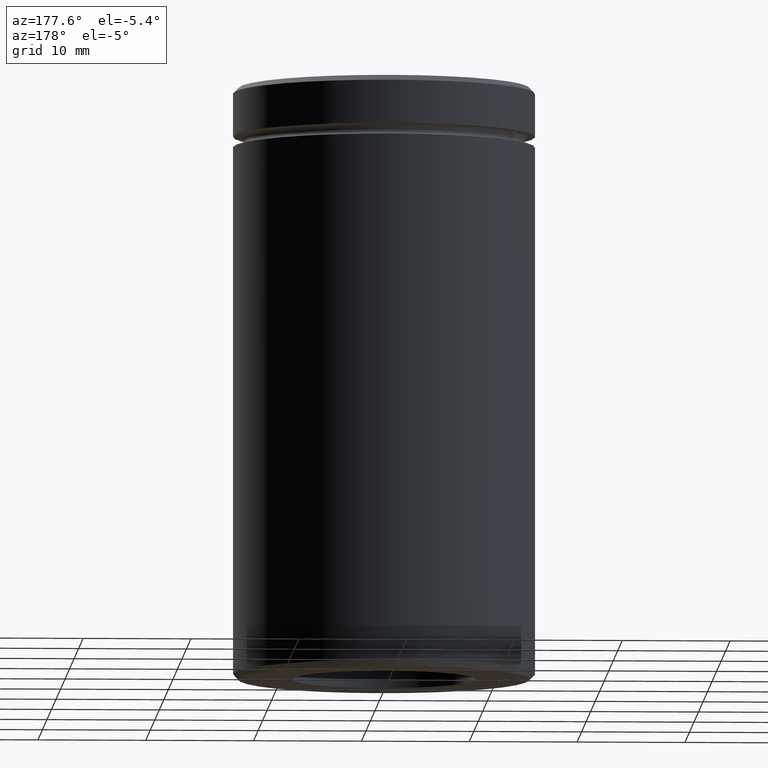
[diagram: clean part render]
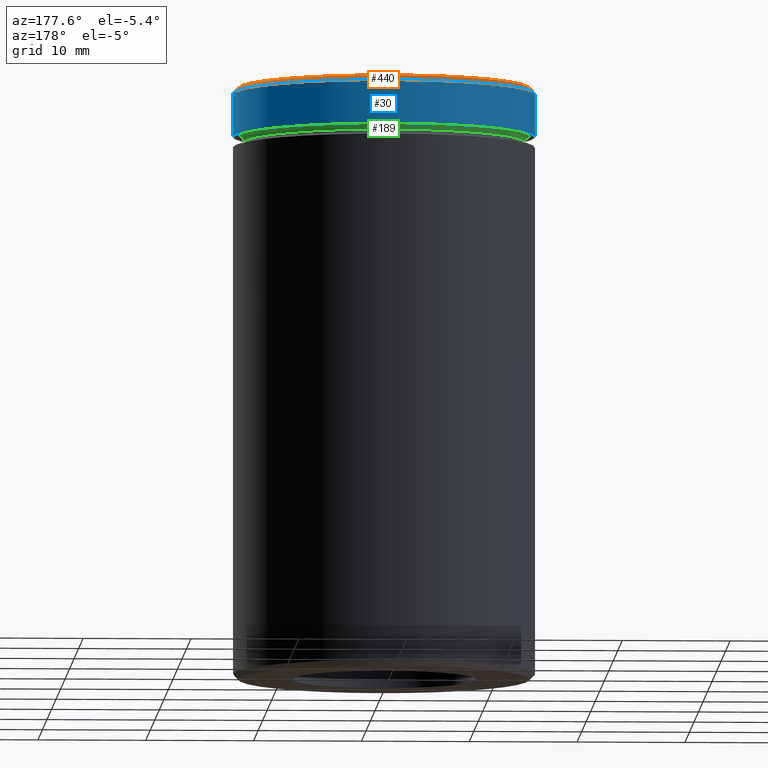
[diagram: same view with three faces highlighted in distinct colors, each labeled with its STEP entity id]
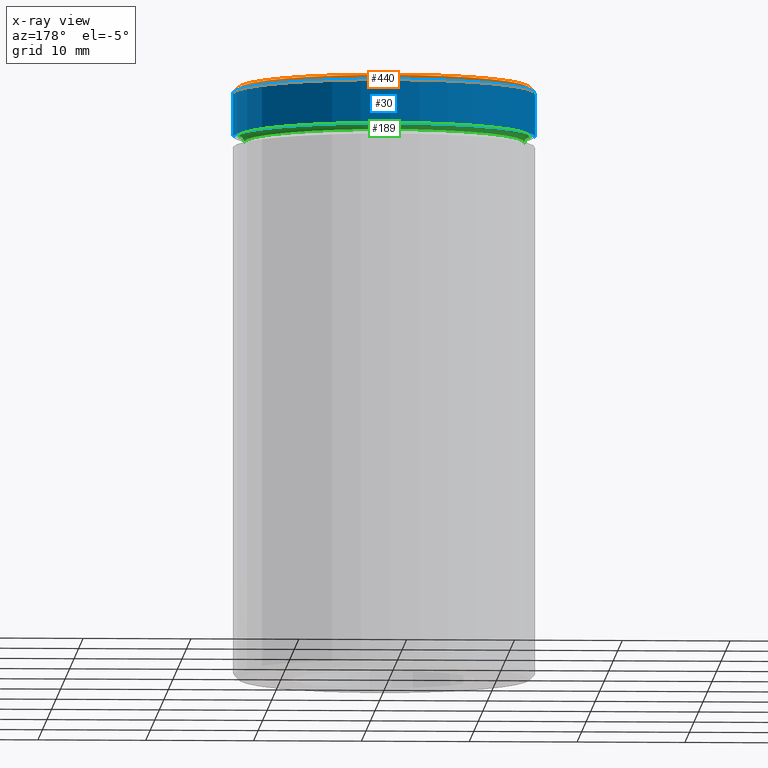
[diagram: x-ray of the same camera — body ghosted, the three highlighted faces saturated]
A machine part, auxiliary view with three faces highlighted in distinct colors.
The next image is the same camera in x-ray (body ghosted, the three faces saturated) — at least one of them is partly hidden behind the body in this view.
Their STEP definitions:

[orange] entity #440 — the highlighted conical surface has half-angle 45 deg.
#19 = EDGE_CURVE ( 'NONE', #69, #490, #403, .T. ) ;
#31 = FACE_OUTER_BOUND ( 'NONE', #479, .T. ) ;
#59 = AXIS2_PLACEMENT_3D ( 'NONE', #241, #411, #111 ) ;
#69 = VERTEX_POINT ( 'NONE', #513 ) ;
#104 = LINE ( 'NONE', #324, #536 ) ;
#108 = CONICAL_SURFACE ( 'NONE', #379, 13.50000000000001954, 0.7853981633974482790 ) ;
#111 = DIRECTION ( 'NONE',  ( 1.000000000000000000, 0.000000000000000000, 0.000000000000000000 ) ) ;
#117 = EDGE_CURVE ( 'NONE', #354, #426, #350, .T. ) ;
#121 = CARTESIAN_POINT ( 'NONE',  ( 0.000000000000000000, 0.000000000000000000, -0.4999999999999813483 ) ) ;
#140 = ORIENTED_EDGE ( 'NONE', *, *, #19, .F. ) ;
#155 = EDGE_CURVE ( 'NONE', #490, #354, #442, .T. ) ;
#216 = CARTESIAN_POINT ( 'NONE',  ( 0.000000000000000000, 0.000000000000000000, 0.000000000000000000 ) ) ;
#240 = VECTOR ( 'NONE', #454, 1000.000000000000114 ) ;
#241 = CARTESIAN_POINT ( 'NONE',  ( 0.000000000000000000, 0.000000000000000000, 0.000000000000000000 ) ) ;
#298 = ORIENTED_EDGE ( 'NONE', *, *, #155, .F. ) ;
#324 = CARTESIAN_POINT ( 'NONE',  ( 13.50000000000001954, 1.653273178848929233E-15, 0.000000000000000000 ) ) ;
#325 = CARTESIAN_POINT ( 'NONE',  ( -14.00000000000000000, 1.714505518806294638E-15, -0.4999999999999813483 ) ) ;
#350 = CIRCLE ( 'NONE', #437, 14.00000000000000000 ) ;
#352 = ORIENTED_EDGE ( 'NONE', *, *, #117, .F. ) ;
#354 = VERTEX_POINT ( 'NONE', #325 ) ;
#370 = CARTESIAN_POINT ( 'NONE',  ( -13.50000000000001954, 0.000000000000000000, 0.000000000000000000 ) ) ;
#379 = AXIS2_PLACEMENT_3D ( 'NONE', #216, #556, #467 ) ;
#403 = CIRCLE ( 'NONE', #59, 13.50000000000001954 ) ;
#411 = DIRECTION ( 'NONE',  ( -0.000000000000000000, -0.000000000000000000, 1.000000000000000000 ) ) ;
#420 = CARTESIAN_POINT ( 'NONE',  ( 14.00000000000000000, 0.000000000000000000, -0.4999999999999813483 ) ) ;
#426 = VERTEX_POINT ( 'NONE', #420 ) ;
#437 = AXIS2_PLACEMENT_3D ( 'NONE', #121, #486, #567 ) ;
#440 = ADVANCED_FACE ( 'NONE', ( #31 ), #108, .T. ) ;
#442 = LINE ( 'NONE', #370, #240 ) ;
#454 = DIRECTION ( 'NONE',  ( -0.7071067811865474617, 0.000000000000000000, -0.7071067811865474617 ) ) ;
#467 = DIRECTION ( 'NONE',  ( -1.000000000000000000, 0.000000000000000000, 0.000000000000000000 ) ) ;
#479 = EDGE_LOOP ( 'NONE', ( #140, #494, #352, #298 ) ) ;
#486 = DIRECTION ( 'NONE',  ( 0.000000000000000000, 0.000000000000000000, -1.000000000000000000 ) ) ;
#490 = VERTEX_POINT ( 'NONE', #508 ) ;
#494 = ORIENTED_EDGE ( 'NONE', *, *, #552, .T. ) ;
#496 = DIRECTION ( 'NONE',  ( 0.7071067811865474617, 8.659560562354932858E-17, -0.7071067811865474617 ) ) ;
#508 = CARTESIAN_POINT ( 'NONE',  ( -13.50000000000001954, 0.000000000000000000, 0.000000000000000000 ) ) ;
#513 = CARTESIAN_POINT ( 'NONE',  ( 13.50000000000001954, 1.683889348827612034E-15, 0.000000000000000000 ) ) ;
#536 = VECTOR ( 'NONE', #496, 1000.000000000000114 ) ;
#552 = EDGE_CURVE ( 'NONE', #69, #426, #104, .T. ) ;
#556 = DIRECTION ( 'NONE',  ( 0.000000000000000000, 0.000000000000000000, -1.000000000000000000 ) ) ;
#567 = DIRECTION ( 'NONE',  ( 1.000000000000000000, 0.000000000000000000, 0.000000000000000000 ) ) ;

[blue] entity #30 — the highlighted cylindrical surface (partial cylindrical patch) has radius 14 mm, axis along (-0, -0, 1).
#18 = CARTESIAN_POINT ( 'NONE',  ( -14.00000000000000000, 1.714505518806294638E-15, -4.500000000000000888 ) ) ;
#30 = ADVANCED_FACE ( 'NONE', ( #64 ), #197, .T. ) ;
#32 = CARTESIAN_POINT ( 'NONE',  ( 14.00000000000000000, 0.000000000000000000, 0.000000000000000000 ) ) ;
#64 = FACE_OUTER_BOUND ( 'NONE', #524, .T. ) ;
#95 = ORIENTED_EDGE ( 'NONE', *, *, #117, .T. ) ;
#117 = EDGE_CURVE ( 'NONE', #354, #426, #350, .T. ) ;
#121 = CARTESIAN_POINT ( 'NONE',  ( 0.000000000000000000, 0.000000000000000000, -0.4999999999999813483 ) ) ;
#123 = DIRECTION ( 'NONE',  ( -0.000000000000000000, -0.000000000000000000, 1.000000000000000000 ) ) ;
#143 = DIRECTION ( 'NONE',  ( 1.000000000000000000, 0.000000000000000000, 0.000000000000000000 ) ) ;
#154 = CARTESIAN_POINT ( 'NONE',  ( 0.000000000000000000, 0.000000000000000000, 0.000000000000000000 ) ) ;
#197 = CYLINDRICAL_SURFACE ( 'NONE', #258, 14.00000000000000000 ) ;
#213 = EDGE_CURVE ( 'NONE', #495, #426, #338, .T. ) ;
#218 = VERTEX_POINT ( 'NONE', #18 ) ;
#227 = VECTOR ( 'NONE', #123, 1000.000000000000000 ) ;
#232 = DIRECTION ( 'NONE',  ( -0.000000000000000000, -0.000000000000000000, 1.000000000000000000 ) ) ;
#234 = DIRECTION ( 'NONE',  ( -0.000000000000000000, -0.000000000000000000, 1.000000000000000000 ) ) ;
#235 = CARTESIAN_POINT ( 'NONE',  ( -14.00000000000000000, 1.714505518806294638E-15, 0.000000000000000000 ) ) ;
#236 = VECTOR ( 'NONE', #287, 1000.000000000000000 ) ;
#250 = LINE ( 'NONE', #235, #236 ) ;
#258 = AXIS2_PLACEMENT_3D ( 'NONE', #154, #232, #371 ) ;
#263 = ORIENTED_EDGE ( 'NONE', *, *, #561, .T. ) ;
#283 = CARTESIAN_POINT ( 'NONE',  ( 0.000000000000000000, 0.000000000000000000, -4.500000000000000888 ) ) ;
#287 = DIRECTION ( 'NONE',  ( -0.000000000000000000, -0.000000000000000000, 1.000000000000000000 ) ) ;
#321 = AXIS2_PLACEMENT_3D ( 'NONE', #283, #234, #143 ) ;
#325 = CARTESIAN_POINT ( 'NONE',  ( -14.00000000000000000, 1.714505518806294638E-15, -0.4999999999999813483 ) ) ;
#336 = ORIENTED_EDGE ( 'NONE', *, *, #213, .F. ) ;
#338 = LINE ( 'NONE', #32, #227 ) ;
#350 = CIRCLE ( 'NONE', #437, 14.00000000000000000 ) ;
#354 = VERTEX_POINT ( 'NONE', #325 ) ;
#371 = DIRECTION ( 'NONE',  ( 1.000000000000000000, 0.000000000000000000, 0.000000000000000000 ) ) ;
#413 = EDGE_CURVE ( 'NONE', #218, #354, #250, .T. ) ;
#420 = CARTESIAN_POINT ( 'NONE',  ( 14.00000000000000000, 0.000000000000000000, -0.4999999999999813483 ) ) ;
#426 = VERTEX_POINT ( 'NONE', #420 ) ;
#437 = AXIS2_PLACEMENT_3D ( 'NONE', #121, #486, #567 ) ;
#462 = ORIENTED_EDGE ( 'NONE', *, *, #413, .T. ) ;
#468 = CARTESIAN_POINT ( 'NONE',  ( 14.00000000000000000, 0.000000000000000000, -4.500000000000000888 ) ) ;
#486 = DIRECTION ( 'NONE',  ( 0.000000000000000000, 0.000000000000000000, -1.000000000000000000 ) ) ;
#495 = VERTEX_POINT ( 'NONE', #468 ) ;
#524 = EDGE_LOOP ( 'NONE', ( #263, #462, #95, #336 ) ) ;
#553 = CIRCLE ( 'NONE', #321, 14.00000000000000000 ) ;
#561 = EDGE_CURVE ( 'NONE', #495, #218, #553, .T. ) ;
#567 = DIRECTION ( 'NONE',  ( 1.000000000000000000, 0.000000000000000000, 0.000000000000000000 ) ) ;

[green] entity #189 — the highlighted toroidal blend (fillet) surface has major radius 13.5 mm and minor (blend) radius 0.5 mm.
#6 = DIRECTION ( 'NONE',  ( -1.224646799147353207E-16, 1.000000000000000000, 0.000000000000000000 ) ) ;
#22 = VERTEX_POINT ( 'NONE', #279 ) ;
#34 = FACE_OUTER_BOUND ( 'NONE', #382, .T. ) ;
#37 = EDGE_CURVE ( 'NONE', #285, #22, #277, .T. ) ;
#39 = DIRECTION ( 'NONE',  ( -1.000000000000000000, 0.000000000000000000, 0.000000000000000000 ) ) ;
#42 = VERTEX_POINT ( 'NONE', #126 ) ;
#50 = VERTEX_POINT ( 'NONE', #385 ) ;
#107 = ORIENTED_EDGE ( 'NONE', *, *, #229, .F. ) ;
#126 = CARTESIAN_POINT ( 'NONE',  ( -13.00000000000000178, 1.622657008870243277E-15, -4.999999999999999112 ) ) ;
#127 = DIRECTION ( 'NONE',  ( 1.000000000000000000, 0.000000000000000000, 0.000000000000000000 ) ) ;
#130 = DIRECTION ( 'NONE',  ( -0.000000000000000000, -1.000000000000000000, -0.000000000000000000 ) ) ;
#131 = CARTESIAN_POINT ( 'NONE',  ( 0.000000000000000000, 0.000000000000000000, -5.000000000000000888 ) ) ;
#133 = CARTESIAN_POINT ( 'NONE',  ( 0.000000000000000000, 0.000000000000000000, -4.999999999999999112 ) ) ;
#144 = CIRCLE ( 'NONE', #443, 0.5000000000000004441 ) ;
#160 = CIRCLE ( 'NONE', #455, 13.00000000000000178 ) ;
#180 = DIRECTION ( 'NONE',  ( 0.000000000000000000, 0.000000000000000000, -1.000000000000000000 ) ) ;
#184 = AXIS2_PLACEMENT_3D ( 'NONE', #131, #470, #39 ) ;
#189 = ADVANCED_FACE ( 'NONE', ( #34 ), #220, .F. ) ;
#198 = EDGE_CURVE ( 'NONE', #285, #42, #160, .T. ) ;
#210 = CIRCLE ( 'NONE', #357, 13.50000000000000178 ) ;
#220 = TOROIDAL_SURFACE ( 'NONE', #184, 13.50000000000000178, 0.5000000000000000000 ) ;
#229 = EDGE_CURVE ( 'NONE', #22, #50, #210, .T. ) ;
#251 = DIRECTION ( 'NONE',  ( -1.000000000000000000, 0.000000000000000000, 0.000000000000000000 ) ) ;
#269 = ORIENTED_EDGE ( 'NONE', *, *, #37, .F. ) ;
#277 = CIRCLE ( 'NONE', #456, 0.5000000000000004441 ) ;
#279 = CARTESIAN_POINT ( 'NONE',  ( 13.50000000000000178, 1.653273178848927064E-15, -4.500000000000000888 ) ) ;
#285 = VERTEX_POINT ( 'NONE', #538 ) ;
#316 = ORIENTED_EDGE ( 'NONE', *, *, #447, .T. ) ;
#343 = CARTESIAN_POINT ( 'NONE',  ( -13.50000000000000178, 0.000000000000000000, -5.000000000000000888 ) ) ;
#357 = AXIS2_PLACEMENT_3D ( 'NONE', #421, #387, #251 ) ;
#367 = DIRECTION ( 'NONE',  ( -1.000000000000000000, -1.224646799147353454E-16, 0.000000000000000000 ) ) ;
#382 = EDGE_LOOP ( 'NONE', ( #269, #562, #316, #107 ) ) ;
#385 = CARTESIAN_POINT ( 'NONE',  ( -13.50000000000000178, 0.000000000000000000, -4.500000000000000888 ) ) ;
#387 = DIRECTION ( 'NONE',  ( -0.000000000000000000, -0.000000000000000000, 1.000000000000000000 ) ) ;
#407 = CARTESIAN_POINT ( 'NONE',  ( 13.50000000000000178, 1.653273178848927064E-15, -5.000000000000000888 ) ) ;
#421 = CARTESIAN_POINT ( 'NONE',  ( 0.000000000000000000, 0.000000000000000000, -4.500000000000000888 ) ) ;
#422 = DIRECTION ( 'NONE',  ( -0.000000000000000000, -0.000000000000000000, 1.000000000000000000 ) ) ;
#443 = AXIS2_PLACEMENT_3D ( 'NONE', #343, #130, #180 ) ;
#447 = EDGE_CURVE ( 'NONE', #42, #50, #144, .T. ) ;
#455 = AXIS2_PLACEMENT_3D ( 'NONE', #133, #422, #127 ) ;
#456 = AXIS2_PLACEMENT_3D ( 'NONE', #407, #6, #367 ) ;
#470 = DIRECTION ( 'NONE',  ( 0.000000000000000000, 0.000000000000000000, -1.000000000000000000 ) ) ;
#538 = CARTESIAN_POINT ( 'NONE',  ( 13.00000000000000178, 0.000000000000000000, -4.999999999999999112 ) ) ;
#562 = ORIENTED_EDGE ( 'NONE', *, *, #198, .T. ) ;